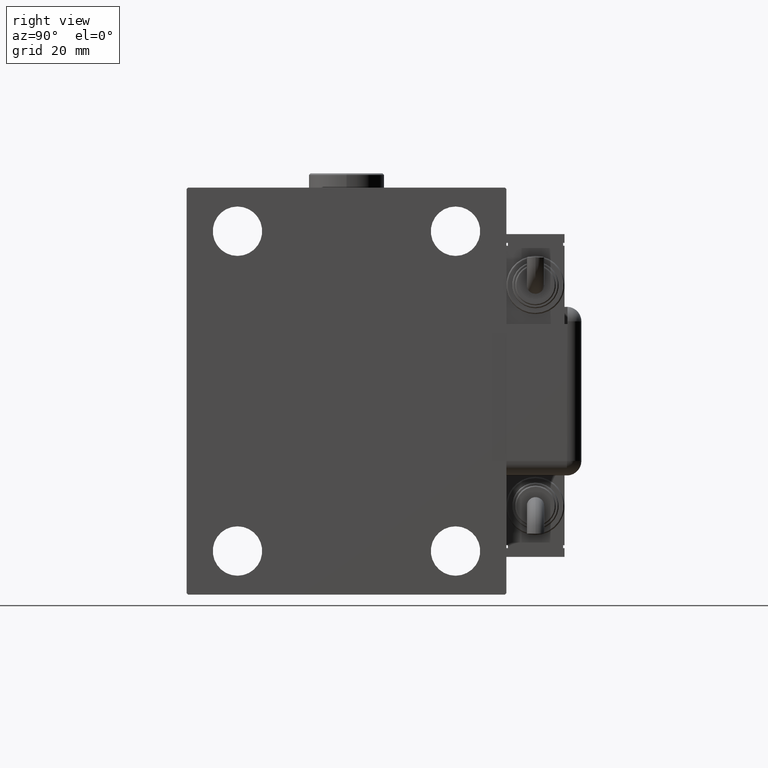
[diagram: clean part render]
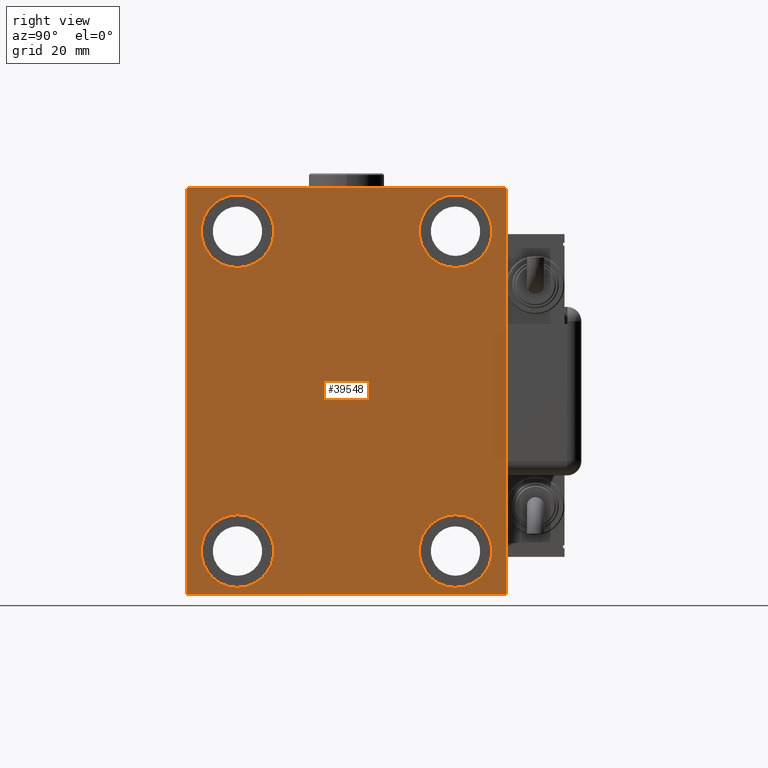
[diagram: same view with one face highlighted and labeled with its STEP entity id]
A machine part, right view. The second image highlights one B-rep face of the part: STEP entity #39548.
In plain terms, the highlighted planar face has unit normal (1, 0, 0).
Its self-contained STEP definition (entity closure, byte-faithful):
#1034 = ORIENTED_EDGE ( 'NONE', *, *, #45485, .T. ) ;
#1349 = DIRECTION ( 'NONE',  ( -1.000000000000000000, -0.000000000000000000, -0.000000000000000000 ) ) ;
#1822 = VECTOR ( 'NONE', #52872, 1000.000000000000000 ) ;
#2210 = CARTESIAN_POINT ( 'NONE',  ( 103.0000000000000000, -37.50000000000000711, 55.00000000000000711 ) ) ;
#2633 = VERTEX_POINT ( 'NONE', #9977 ) ;
#2924 = EDGE_CURVE ( 'NONE', #12810, #25175, #52814, .T. ) ;
#3008 = ORIENTED_EDGE ( 'NONE', *, *, #37272, .T. ) ;
#3806 = EDGE_CURVE ( 'NONE', #4809, #2633, #15528, .T. ) ;
#4261 = EDGE_CURVE ( 'NONE', #28948, #34925, #41512, .T. ) ;
#4348 = VECTOR ( 'NONE', #50514, 1000.000000000000000 ) ;
#4365 = EDGE_CURVE ( 'NONE', #35007, #17377, #31255, .T. ) ;
#4678 = EDGE_CURVE ( 'NONE', #25175, #5102, #5391, .T. ) ;
#4809 = VERTEX_POINT ( 'NONE', #41670 ) ;
#5102 = VERTEX_POINT ( 'NONE', #26076 ) ;
#5389 = AXIS2_PLACEMENT_3D ( 'NONE', #19714, #10470, #28640 ) ;
#5391 = LINE ( 'NONE', #47905, #36148 ) ;
#5456 = VECTOR ( 'NONE', #6234, 1000.000000000000114 ) ;
#5693 = AXIS2_PLACEMENT_3D ( 'NONE', #32252, #8864, #27643 ) ;
#6234 = DIRECTION ( 'NONE',  ( -0.000000000000000000, 0.7071067811865474617, 0.7071067811865474617 ) ) ;
#6262 = ORIENTED_EDGE ( 'NONE', *, *, #40607, .T. ) ;
#8295 = LINE ( 'NONE', #36918, #4348 ) ;
#8360 = EDGE_CURVE ( 'NONE', #11530, #54509, #20279, .T. ) ;
#8864 = DIRECTION ( 'NONE',  ( -1.000000000000000000, -0.000000000000000000, -0.000000000000000000 ) ) ;
#9041 = EDGE_CURVE ( 'NONE', #5102, #50761, #54420, .T. ) ;
#9437 = ORIENTED_EDGE ( 'NONE', *, *, #11196, .T. ) ;
#9962 = DIRECTION ( 'NONE',  ( 0.000000000000000000, 0.000000000000000000, 1.000000000000000000 ) ) ;
#9977 = CARTESIAN_POINT ( 'NONE',  ( 103.0000000000000000, -37.50000000000002132, -67.49999999999998579 ) ) ;
#10197 = CARTESIAN_POINT ( 'NONE',  ( 103.0000000000000000, 37.50000000000000711, 67.50000000000000000 ) ) ;
#10428 = AXIS2_PLACEMENT_3D ( 'NONE', #31563, #35591, #21715 ) ;
#10461 = FACE_BOUND ( 'NONE', #47921, .T. ) ;
#10470 = DIRECTION ( 'NONE',  ( -1.000000000000000000, -0.000000000000000000, -0.000000000000000000 ) ) ;
#10544 = CARTESIAN_POINT ( 'NONE',  ( 103.0000000000000000, 62.25000000000000711, -62.25000000000000711 ) ) ;
#11196 = EDGE_CURVE ( 'NONE', #17377, #35007, #48932, .T. ) ;
#11530 = VERTEX_POINT ( 'NONE', #38937 ) ;
#12442 = VECTOR ( 'NONE', #20826, 1000.000000000000000 ) ;
#12810 = VERTEX_POINT ( 'NONE', #41661 ) ;
#13071 = CARTESIAN_POINT ( 'NONE',  ( 103.0000000000000000, 37.49999999999997868, -42.49999999999999289 ) ) ;
#14418 = EDGE_LOOP ( 'NONE', ( #6262, #20175 ) ) ;
#14578 = CARTESIAN_POINT ( 'NONE',  ( 103.0000000000000000, 37.49999999999997868, -54.99999999999999289 ) ) ;
#14660 = CARTESIAN_POINT ( 'NONE',  ( 103.0000000000000000, -37.50000000000000711, 67.50000000000000000 ) ) ;
#15075 = DIRECTION ( 'NONE',  ( 0.000000000000000000, 0.000000000000000000, -1.000000000000000000 ) ) ;
#15528 = CIRCLE ( 'NONE', #32216, 12.49999999999999645 ) ;
#17316 = VERTEX_POINT ( 'NONE', #13071 ) ;
#17377 = VERTEX_POINT ( 'NONE', #44831 ) ;
#17883 = CIRCLE ( 'NONE', #58228, 12.49999999999999645 ) ;
#19189 = DIRECTION ( 'NONE',  ( 0.000000000000000000, -0.7071067811865474617, -0.7071067811865474617 ) ) ;
#19393 = VECTOR ( 'NONE', #48199, 1000.000000000000000 ) ;
#19420 = EDGE_LOOP ( 'NONE', ( #40343, #48668, #40113, #48295, #51117, #1034, #55242, #31714 ) ) ;
#19714 = CARTESIAN_POINT ( 'NONE',  ( 103.0000000000000000, -37.50000000000002132, -54.99999999999999289 ) ) ;
#20002 = FACE_BOUND ( 'NONE', #54461, .T. ) ;
#20175 = ORIENTED_EDGE ( 'NONE', *, *, #3806, .T. ) ;
#20279 = CIRCLE ( 'NONE', #54721, 12.49999999999999645 ) ;
#20826 = DIRECTION ( 'NONE',  ( 0.000000000000000000, -1.000000000000000000, -1.261617073437677999E-16 ) ) ;
#20971 = DIRECTION ( 'NONE',  ( -1.000000000000000000, -0.000000000000000000, -0.000000000000000000 ) ) ;
#21024 = CARTESIAN_POINT ( 'NONE',  ( 103.0000000000000000, 55.00000000000002132, -70.00000000000000000 ) ) ;
#21715 = DIRECTION ( 'NONE',  ( 0.000000000000000000, 0.000000000000000000, 1.000000000000000000 ) ) ;
#22215 = ORIENTED_EDGE ( 'NONE', *, *, #54927, .T. ) ;
#22632 = CARTESIAN_POINT ( 'NONE',  ( 103.0000000000000000, -37.50000000000002132, -54.99999999999999289 ) ) ;
#23036 = ORIENTED_EDGE ( 'NONE', *, *, #4365, .T. ) ;
#23317 = CARTESIAN_POINT ( 'NONE',  ( 103.0000000000000000, -62.24999999999927525, -62.25000000000100897 ) ) ;
#25175 = VERTEX_POINT ( 'NONE', #51010 ) ;
#25341 = DIRECTION ( 'NONE',  ( 0.000000000000000000, 0.000000000000000000, 1.000000000000000000 ) ) ;
#25768 = FACE_BOUND ( 'NONE', #14418, .T. ) ;
#25773 = CARTESIAN_POINT ( 'NONE',  ( 103.0000000000000000, 54.99999999999999289, 70.00000000000000000 ) ) ;
#26076 = CARTESIAN_POINT ( 'NONE',  ( 103.0000000000000000, 54.49999999999999289, 70.00000000000000000 ) ) ;
#26840 = CARTESIAN_POINT ( 'NONE',  ( 103.0000000000000000, -54.50000000000000711, 69.99999999999998579 ) ) ;
#26873 = CARTESIAN_POINT ( 'NONE',  ( 103.0000000000000000, -54.50000000000003553, -70.00000000000002842 ) ) ;
#27617 = VERTEX_POINT ( 'NONE', #42088 ) ;
#27643 = DIRECTION ( 'NONE',  ( 0.000000000000000000, 0.000000000000000000, 1.000000000000000000 ) ) ;
#27658 = CARTESIAN_POINT ( 'NONE',  ( 103.0000000000000000, -55.00000000000000711, 69.49999999999998579 ) ) ;
#27696 = EDGE_CURVE ( 'NONE', #34925, #44879, #37764, .T. ) ;
#28640 = DIRECTION ( 'NONE',  ( 0.000000000000000000, 0.000000000000000000, 1.000000000000000000 ) ) ;
#28948 = VERTEX_POINT ( 'NONE', #36607 ) ;
#29288 = VECTOR ( 'NONE', #56590, 999.9999999999998863 ) ;
#29716 = CIRCLE ( 'NONE', #38564, 12.49999999999999645 ) ;
#30628 = EDGE_LOOP ( 'NONE', ( #32374, #37768 ) ) ;
#31255 = CIRCLE ( 'NONE', #5693, 12.49999999999999645 ) ;
#31563 = CARTESIAN_POINT ( 'NONE',  ( 103.0000000000000000, 37.50000000000000711, 55.00000000000000711 ) ) ;
#31714 = ORIENTED_EDGE ( 'NONE', *, *, #4678, .T. ) ;
#31816 = LINE ( 'NONE', #60787, #50973 ) ;
#32216 = AXIS2_PLACEMENT_3D ( 'NONE', #22632, #56221, #46070 ) ;
#32252 = CARTESIAN_POINT ( 'NONE',  ( 103.0000000000000000, 37.50000000000000711, 55.00000000000000711 ) ) ;
#32374 = ORIENTED_EDGE ( 'NONE', *, *, #8360, .T. ) ;
#33347 = VERTEX_POINT ( 'NONE', #27658 ) ;
#34925 = VERTEX_POINT ( 'NONE', #26873 ) ;
#35007 = VERTEX_POINT ( 'NONE', #10197 ) ;
#35591 = DIRECTION ( 'NONE',  ( -1.000000000000000000, -0.000000000000000000, -0.000000000000000000 ) ) ;
#35794 = CARTESIAN_POINT ( 'NONE',  ( 103.0000000000000000, 37.49999999999997868, -54.99999999999999289 ) ) ;
#35846 = CIRCLE ( 'NONE', #5389, 12.49999999999999645 ) ;
#36148 = VECTOR ( 'NONE', #48515, 1000.000000000000114 ) ;
#36574 = CARTESIAN_POINT ( 'NONE',  ( 103.0000000000000000, 54.50000000000002132, -70.00000000000000000 ) ) ;
#36607 = CARTESIAN_POINT ( 'NONE',  ( 103.0000000000000000, -55.00000000000000711, -69.50000000000007105 ) ) ;
#36918 = CARTESIAN_POINT ( 'NONE',  ( 103.0000000000000000, -55.00000000000000711, 69.99999999999998579 ) ) ;
#37272 = EDGE_CURVE ( 'NONE', #17316, #27617, #17883, .T. ) ;
#37419 = EDGE_CURVE ( 'NONE', #54509, #11530, #29716, .T. ) ;
#37586 = CARTESIAN_POINT ( 'NONE',  ( 103.0000000000000000, 0.000000000000000000, 0.000000000000000000 ) ) ;
#37764 = LINE ( 'NONE', #47942, #1822 ) ;
#37768 = ORIENTED_EDGE ( 'NONE', *, *, #37419, .T. ) ;
#38195 = PLANE ( 'NONE',  #49488 ) ;
#38564 = AXIS2_PLACEMENT_3D ( 'NONE', #53106, #1349, #25341 ) ;
#38803 = FACE_OUTER_BOUND ( 'NONE', #19420, .T. ) ;
#38937 = CARTESIAN_POINT ( 'NONE',  ( 103.0000000000000000, -37.50000000000000711, 42.50000000000000711 ) ) ;
#39193 = LINE ( 'NONE', #10544, #5456 ) ;
#39548 = ADVANCED_FACE ( 'NONE', ( #20002, #49205, #10461, #25768, #38803 ), #38195, .T. ) ;
#39772 = DIRECTION ( 'NONE',  ( 0.000000000000000000, 0.000000000000000000, 1.000000000000000000 ) ) ;
#40113 = ORIENTED_EDGE ( 'NONE', *, *, #43044, .T. ) ;
#40343 = ORIENTED_EDGE ( 'NONE', *, *, #9041, .T. ) ;
#40607 = EDGE_CURVE ( 'NONE', #2633, #4809, #35846, .T. ) ;
#41203 = AXIS2_PLACEMENT_3D ( 'NONE', #35794, #45359, #50590 ) ;
#41512 = LINE ( 'NONE', #23317, #29288 ) ;
#41661 = CARTESIAN_POINT ( 'NONE',  ( 103.0000000000000000, 55.00000000000002132, -69.50000000000000000 ) ) ;
#41670 = CARTESIAN_POINT ( 'NONE',  ( 103.0000000000000000, -37.50000000000002132, -42.49999999999999289 ) ) ;
#42088 = CARTESIAN_POINT ( 'NONE',  ( 103.0000000000000000, 37.49999999999997868, -67.49999999999998579 ) ) ;
#43044 = EDGE_CURVE ( 'NONE', #33347, #28948, #8295, .T. ) ;
#44831 = CARTESIAN_POINT ( 'NONE',  ( 103.0000000000000000, 37.50000000000000711, 42.50000000000000711 ) ) ;
#44879 = VERTEX_POINT ( 'NONE', #36574 ) ;
#45359 = DIRECTION ( 'NONE',  ( -1.000000000000000000, -0.000000000000000000, -0.000000000000000000 ) ) ;
#45485 = EDGE_CURVE ( 'NONE', #44879, #12810, #39193, .T. ) ;
#46070 = DIRECTION ( 'NONE',  ( 0.000000000000000000, 0.000000000000000000, 1.000000000000000000 ) ) ;
#47252 = DIRECTION ( 'NONE',  ( -1.000000000000000000, -0.000000000000000000, -0.000000000000000000 ) ) ;
#47905 = CARTESIAN_POINT ( 'NONE',  ( 103.0000000000000000, 62.24999999999999289, 62.24999999999999289 ) ) ;
#47921 = EDGE_LOOP ( 'NONE', ( #9437, #23036 ) ) ;
#47942 = CARTESIAN_POINT ( 'NONE',  ( 103.0000000000000000, -55.00000000000000711, -70.00000000000002842 ) ) ;
#48199 = DIRECTION ( 'NONE',  ( 0.000000000000000000, -1.982541115402065110E-16, 1.000000000000000000 ) ) ;
#48295 = ORIENTED_EDGE ( 'NONE', *, *, #4261, .T. ) ;
#48515 = DIRECTION ( 'NONE',  ( -0.000000000000000000, -0.7071067811865474617, 0.7071067811865474617 ) ) ;
#48668 = ORIENTED_EDGE ( 'NONE', *, *, #57156, .T. ) ;
#48932 = CIRCLE ( 'NONE', #10428, 12.49999999999999645 ) ;
#49205 = FACE_BOUND ( 'NONE', #30628, .T. ) ;
#49488 = AXIS2_PLACEMENT_3D ( 'NONE', #37586, #51768, #15075 ) ;
#50514 = DIRECTION ( 'NONE',  ( 0.000000000000000000, 0.000000000000000000, -1.000000000000000000 ) ) ;
#50590 = DIRECTION ( 'NONE',  ( 0.000000000000000000, 0.000000000000000000, 1.000000000000000000 ) ) ;
#50761 = VERTEX_POINT ( 'NONE', #26840 ) ;
#50973 = VECTOR ( 'NONE', #19189, 1000.000000000000114 ) ;
#51010 = CARTESIAN_POINT ( 'NONE',  ( 103.0000000000000000, 54.99999999999999289, 69.50000000000000000 ) ) ;
#51117 = ORIENTED_EDGE ( 'NONE', *, *, #27696, .T. ) ;
#51768 = DIRECTION ( 'NONE',  ( 1.000000000000000000, 0.000000000000000000, 0.000000000000000000 ) ) ;
#52814 = LINE ( 'NONE', #21024, #19393 ) ;
#52872 = DIRECTION ( 'NONE',  ( 0.000000000000000000, 1.000000000000000000, 2.523234146875355012E-16 ) ) ;
#53106 = CARTESIAN_POINT ( 'NONE',  ( 103.0000000000000000, -37.50000000000000711, 55.00000000000000711 ) ) ;
#54420 = LINE ( 'NONE', #25773, #12442 ) ;
#54461 = EDGE_LOOP ( 'NONE', ( #22215, #3008 ) ) ;
#54509 = VERTEX_POINT ( 'NONE', #14660 ) ;
#54721 = AXIS2_PLACEMENT_3D ( 'NONE', #2210, #20971, #39772 ) ;
#54927 = EDGE_CURVE ( 'NONE', #27617, #17316, #54977, .T. ) ;
#54977 = CIRCLE ( 'NONE', #41203, 12.49999999999999645 ) ;
#55242 = ORIENTED_EDGE ( 'NONE', *, *, #2924, .T. ) ;
#56221 = DIRECTION ( 'NONE',  ( -1.000000000000000000, -0.000000000000000000, -0.000000000000000000 ) ) ;
#56590 = DIRECTION ( 'NONE',  ( -0.000000000000000000, 0.7071067811865574537, -0.7071067811865376918 ) ) ;
#57156 = EDGE_CURVE ( 'NONE', #50761, #33347, #31816, .T. ) ;
#58228 = AXIS2_PLACEMENT_3D ( 'NONE', #14578, #47252, #9962 ) ;
#60787 = CARTESIAN_POINT ( 'NONE',  ( 103.0000000000000000, -62.25000000000000000, 62.25000000000000000 ) ) ;